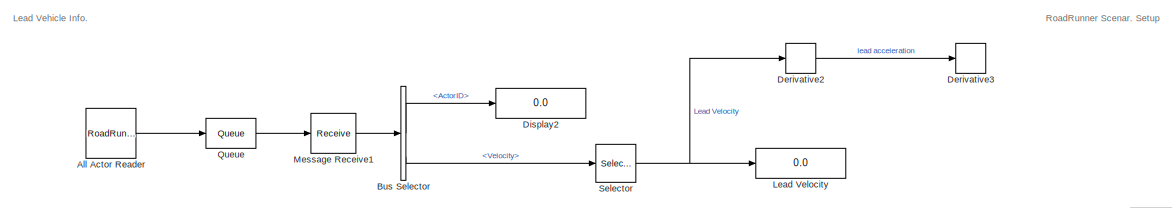
[diagram: root canvas - part 1/4, top center region]
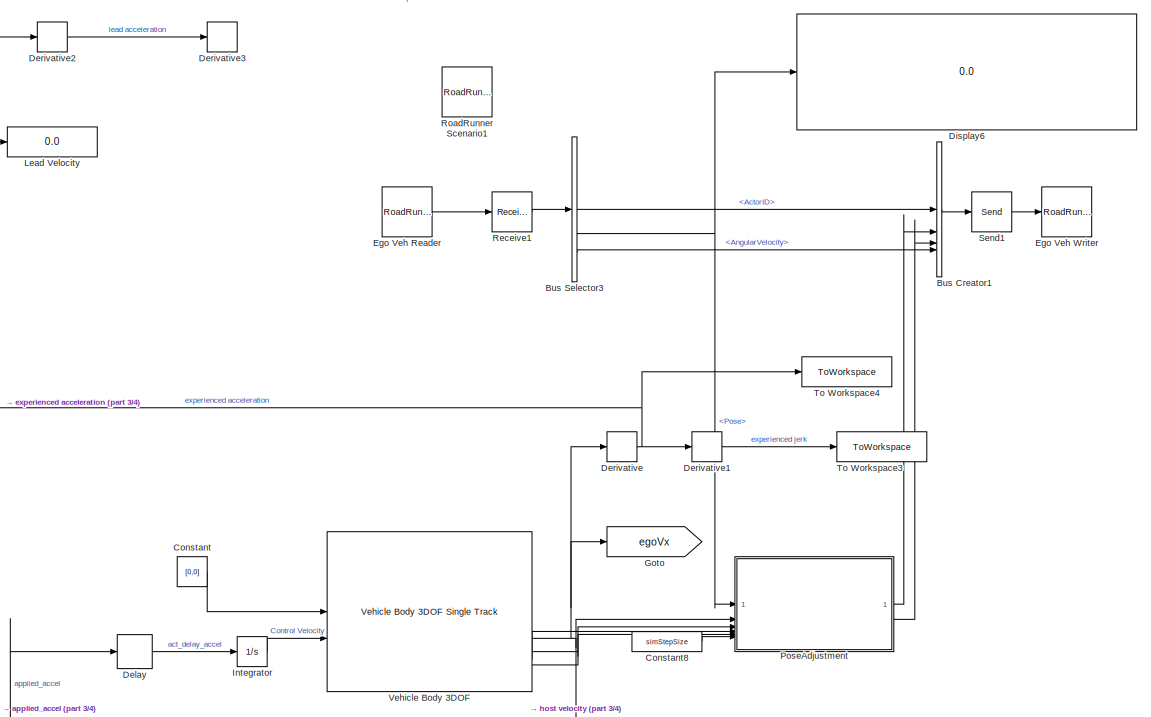
[diagram: root canvas - part 2/4, middle right region]
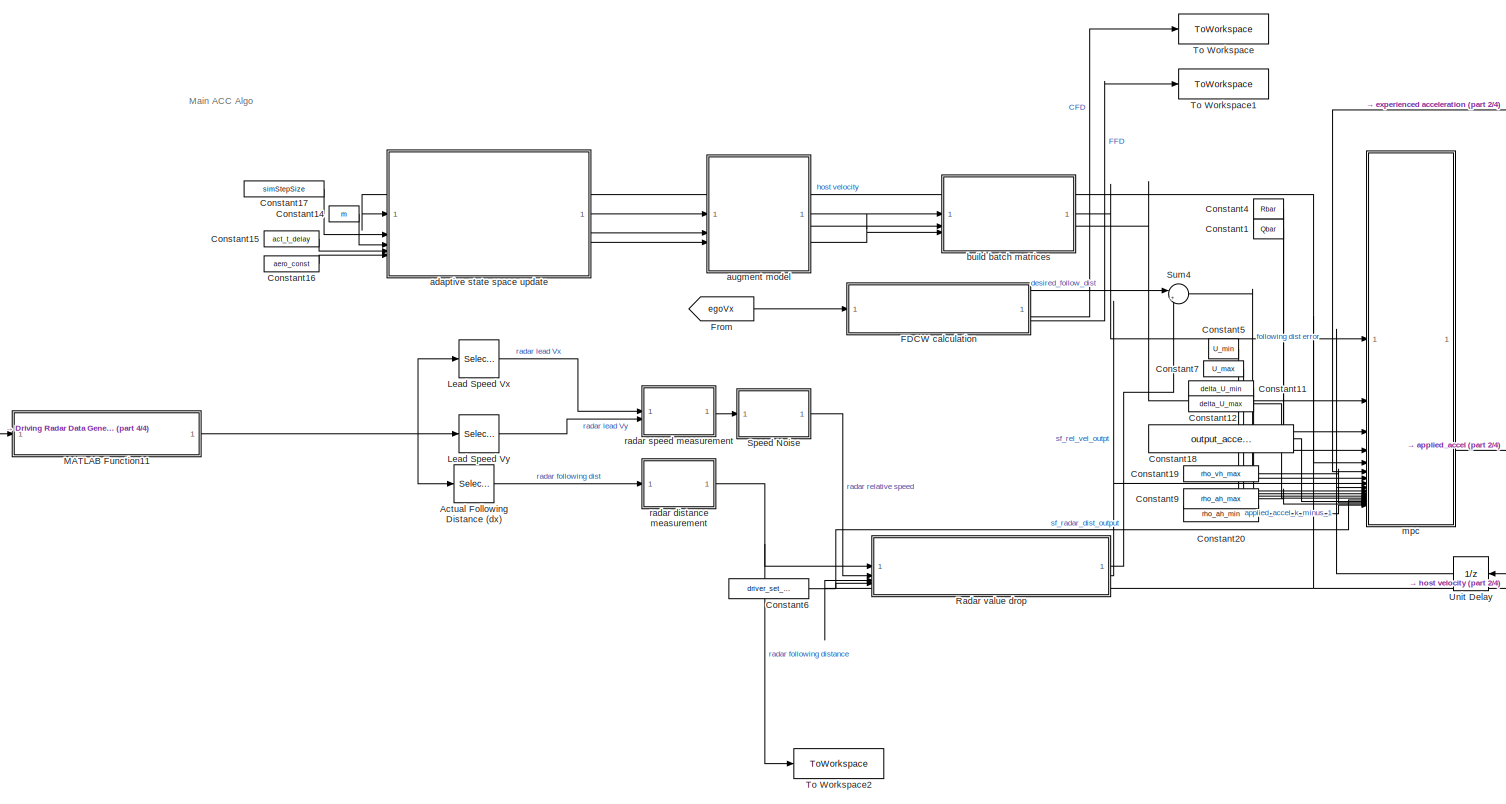
[diagram: root canvas - part 3/4, central region]
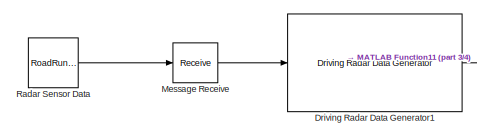
[diagram: root canvas - part 4/4, bottom left region]
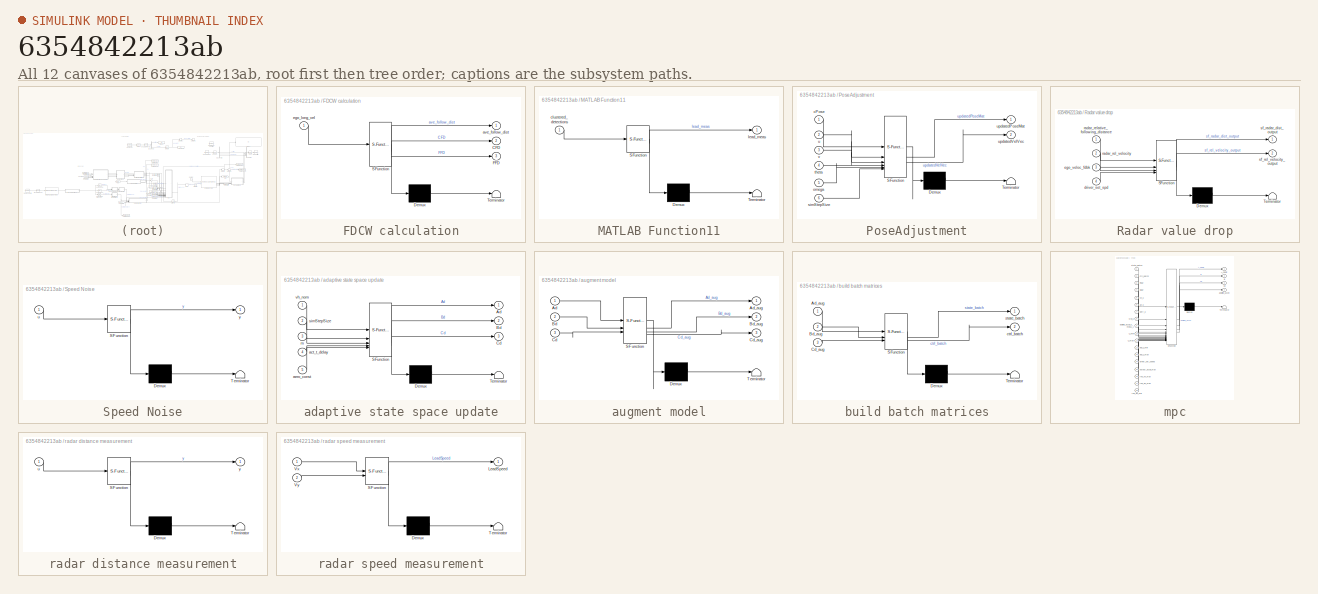
[diagram: thumbnail index - all 12 canvases of the model, root first then tree order]
MODEL slx_6354842213ab
KIND model
CONFIG AbsTol = auto
CONFIG EnableMultiTasking = off
CONFIG FixedStep = .05
CONFIG MaxStep = auto
CONFIG MinStep = auto
CONFIG RelTol = 1e-3
CONFIG SampleTimeConstraint = Unconstrained
CONFIG SolverName = FixedStepAuto
CONFIG StartTime = 0
CONFIG StopTime = 1000
BLOCK [Selector] Actual Following Distance (dx)
  IndexOptions = Index vector (dialog)
  Indices = [1]
  InputPortWidth = 6
  OutputSizes = 1
BLOCK [Reference] All Actor Reader  REF=roadrunnerscenario/RoadRunner Scenario
Reader
  SourceBlock = roadrunnerscenario/RoadRunner Scenario\nReader
BLOCK [BusCreator] Bus Creator1
  DisplayOption = bar
  InheritFromInputs = off
  Inputs = 4
  NonVirtualBus = on
  OutDataTypeStr = Bus: BusActorRuntime
BLOCK [BusSelector] Bus Selector
  OutputSignals = ActorID,Pose,Velocity
BLOCK [BusSelector] Bus Selector3
  OutputSignals = ActorID,Pose,Velocity,AngularVelocity
BLOCK [Constant] Constant
  Value = [0,0]
BLOCK [Constant] Constant1
  Value = Qbar
BLOCK [Constant] Constant11
  NameLocation = top
  Value = delta_U_min
BLOCK [Constant] Constant12
  Value = delta_U_max
BLOCK [Constant] Constant14
  Value = m
BLOCK [Constant] Constant15
  Value = act_t_delay
BLOCK [Constant] Constant16
  Value = aero_const
BLOCK [Constant] Constant17
  Value = simStepSize
BLOCK [Constant] Constant18
  Value = output_accel_max
BLOCK [Constant] Constant19
  Value = rho_vh_max
BLOCK [Constant] Constant20
  Value = rho_ah_min
BLOCK [Constant] Constant4
  Value = Rbar
BLOCK [Constant] Constant5
  Value = U_min
BLOCK [Constant] Constant6
  Value = driver_set_speed
BLOCK [Constant] Constant7
  Value = U_max
BLOCK [Constant] Constant8
  Value = simStepSize
BLOCK [Constant] Constant9
  Value = rho_ah_max
BLOCK [Delay] Delay
  DelayLength = 0.2/act_t_delay
  InputPortMap = u0
BLOCK [Derivative] Derivative
BLOCK [Derivative] Derivative1
BLOCK [Derivative] Derivative2
BLOCK [Derivative] Derivative3
BLOCK [Display] Display2
  Decimation = 1
BLOCK [Display] Display6
  Decimation = 1
BLOCK [Reference] Driving Radar Data Generator1  REF=drivingscenarioandsensors/Driving Radar Data Generator
  SourceBlock = drivingscenarioandsensors/Driving Radar Data Generator
  SourceType = drivingRadarDataGenerator
BLOCK [Reference] Ego Veh Reader  REF=roadrunnerscenario/RoadRunner Scenario
Reader
  SourceBlock = roadrunnerscenario/RoadRunner Scenario\nReader
BLOCK [Reference] Ego Veh Writer  REF=roadrunnerscenario/RoadRunner Scenario
Writer
  SourceBlock = roadrunnerscenario/RoadRunner Scenario\nWriter
BLOCK [SubSystem] FDCW calculation
  ErrorFcn = Stateflow.Translate.translate
  PermitHierarchicalResolution = ExplicitOnly
  SFBlockType = MATLAB Function
  TreatAsAtomicUnit = on
BLOCK [Demux] FDCW calculation/ Demux 
  Outputs = 1
BLOCK [S-Function] FDCW calculation/ SFunction 
  EnableBusSupport = on
  FunctionName = sf_sfun
  PortCounts = [1 4]
  SFcnIsStateOwnerBlock = off
  SFunctionDeploymentMode = off
  Tag = Stateflow S-Function 23
BLOCK [Terminator] FDCW calculation/ Terminator 
BLOCK [Outport] FDCW calculation/CFD
  Port = 2
BLOCK [Outport] FDCW calculation/FFD
  Port = 3
BLOCK [Outport] FDCW calculation/ave_follow_dist
BLOCK [Inport] FDCW calculation/ego_long_vel
BLOCK [From] From
  GotoTag = egoVx
BLOCK [Goto] Goto
  GotoTag = egoVx
BLOCK [Integrator] Integrator
BLOCK [Selector] Lead Speed Vx
  IndexOptions = Index vector (dialog)
  Indices = 4
  InputPortWidth = 6
  OutputSizes = 1
BLOCK [Selector] Lead Speed Vy
  IndexOptions = Index vector (dialog)
  Indices = 5
  InputPortWidth = 6
  NameLocation = top
  OutputSizes = 1
BLOCK [Display] Lead Velocity
  Decimation = 1
BLOCK [SubSystem] MATLAB Function11
  ErrorFcn = Stateflow.Translate.translate
  PermitHierarchicalResolution = ExplicitOnly
  SFBlockType = MATLAB Function
  TreatAsAtomicUnit = on
BLOCK [Demux] MATLAB Function11/ Demux 
  Outputs = 1
BLOCK [S-Function] MATLAB Function11/ SFunction 
  EnableBusSupport = on
  FunctionName = sf_sfun
  PortCounts = [1 2]
  SFcnIsStateOwnerBlock = off
  SFunctionDeploymentMode = off
  Tag = Stateflow S-Function 22
BLOCK [Terminator] MATLAB Function11/ Terminator 
BLOCK [Inport] MATLAB Function11/clustered_detections
BLOCK [Outport] MATLAB Function11/lead_meas
BLOCK [Receive] Message Receive
  InputPortMap = u0
  InputPortMessageModes = m
  OutputPortMap = o1
  UseInternalQueue = off
BLOCK [Receive] Message Receive1
  InputPortMap = u0
  InputPortMessageModes = m
  OutputPortMap = o1
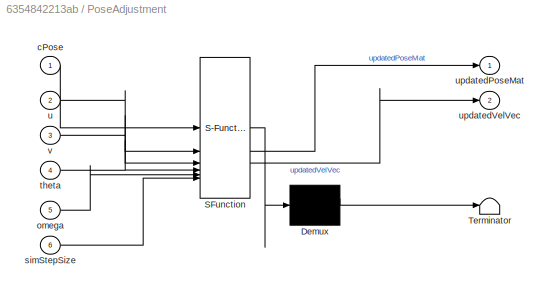
BLOCK [SubSystem] PoseAdjustment
  ErrorFcn = Stateflow.Translate.translate
  PermitHierarchicalResolution = ExplicitOnly
  SFBlockType = MATLAB Function
  TreatAsAtomicUnit = on
BLOCK [Demux] PoseAdjustment/ Demux 
  Outputs = 1
BLOCK [S-Function] PoseAdjustment/ SFunction 
  EnableBusSupport = on
  FunctionName = sf_sfun
  PortCounts = [6 3]
  SFcnIsStateOwnerBlock = off
  SFunctionDeploymentMode = off
  Tag = Stateflow S-Function 12
BLOCK [Terminator] PoseAdjustment/ Terminator 
BLOCK [Inport] PoseAdjustment/cPose
BLOCK [Inport] PoseAdjustment/omega
  Port = 5
BLOCK [Inport] PoseAdjustment/simStepSize
  Port = 6
BLOCK [Inport] PoseAdjustment/theta
  Port = 4
BLOCK [Inport] PoseAdjustment/u
  Port = 2
BLOCK [Outport] PoseAdjustment/updatedPoseMat
BLOCK [Outport] PoseAdjustment/updatedVelVec
  Port = 2
BLOCK [Inport] PoseAdjustment/v
  Port = 3
BLOCK [Queue] Queue
  Capacity = 16
  InputPortMap = u0
  InputPortMessageModes = m
  OutputPortMap = o5
  OutputPortMessageModes = m
  OverwriteOldest = on
  QueueType = LIFO
BLOCK [Reference] Radar Sensor Data  REF=roadrunnerscenario/RoadRunner Scenario
Reader
  SourceBlock = roadrunnerscenario/RoadRunner Scenario\nReader
BLOCK [SubSystem] Radar value drop
  ErrorFcn = Stateflow.Translate.translate
  PermitHierarchicalResolution = ExplicitOnly
  SFBlockType = Chart
  TreatAsAtomicUnit = on
BLOCK [Demux] Radar value drop/ Demux 
  Outputs = 1
BLOCK [S-Function] Radar value drop/ SFunction 
  EnableBusSupport = on
  FunctionName = sf_sfun
  PortCounts = [4 3]
  SFcnIsStateOwnerBlock = off
  SFunctionDeploymentMode = off
  Tag = Stateflow S-Function 3
BLOCK [Terminator] Radar value drop/ Terminator 
BLOCK [Inport] Radar value drop/driver_set_spd
  Port = 4
BLOCK [Inport] Radar value drop/ego_veloc_fdbk
  Port = 3
BLOCK [Inport] Radar value drop/radar_rel_velocity
  Port = 2
BLOCK [Inport] Radar value drop/radar_relative_following_distance
BLOCK [Outport] Radar value drop/sf_radar_dist_output
BLOCK [Outport] Radar value drop/sf_rel_velocity_output
  Port = 2
BLOCK [Receive] Receive1
  InputPortMap = u0
  InputPortMessageModes = m
  OutputPortMap = o1
  QueueLength = 1
  QueueOverwriting = on
  QueueType = LIFO
  UseInternalQueue = off
BLOCK [Reference] RoadRunner Scenario1  REF=roadrunnerscenario/RoadRunner Scenario
  SourceBlock = roadrunnerscenario/RoadRunner Scenario
BLOCK [Selector] Selector
  IndexOptions = Index vector (dialog)
  Indices = [2]
  InputPortWidth = 3
  OutputSizes = 1
BLOCK [Send] Send1
  InputPortMap = u1
  OutputPortMessageModes = m
BLOCK [SubSystem] Speed Noise
  ErrorFcn = Stateflow.Translate.translate
  PermitHierarchicalResolution = ExplicitOnly
  SFBlockType = MATLAB Function
  TreatAsAtomicUnit = on
BLOCK [Demux] Speed Noise/ Demux 
  Outputs = 1
BLOCK [S-Function] Speed Noise/ SFunction 
  EnableBusSupport = on
  FunctionName = sf_sfun
  PortCounts = [1 2]
  SFcnIsStateOwnerBlock = off
  SFunctionDeploymentMode = off
  Tag = Stateflow S-Function 15
BLOCK [Terminator] Speed Noise/ Terminator 
BLOCK [Inport] Speed Noise/u
BLOCK [Outport] Speed Noise/y
BLOCK [Sum] Sum4
  Inputs = |+-
BLOCK [ToWorkspace] To Workspace
  FixptAsFi = on
  MaxDataPoints = inf
  SampleTime = -1
  VariableName = MPC_CFD
BLOCK [ToWorkspace] To Workspace1
  FixptAsFi = on
  MaxDataPoints = inf
  SampleTime = -1
  VariableName = MPC_FFD
BLOCK [ToWorkspace] To Workspace2
  FixptAsFi = on
  MaxDataPoints = inf
  SampleTime = -1
  VariableName = MPC_actual_foll_dist
BLOCK [ToWorkspace] To Workspace3
  FixptAsFi = on
  MaxDataPoints = inf
  SampleTime = -1
  VariableName = MPC_host_jerk
BLOCK [ToWorkspace] To Workspace4
  FixptAsFi = on
  MaxDataPoints = inf
  SampleTime = -1
  VariableName = MPC_host_accel
BLOCK [UnitDelay] Unit Delay
  HasFrameUpgradeWarning = on
  SampleTime = -1
BLOCK [Reference] Vehicle Body 3DOF   REF=autolibshared/Vehicle Body 3DOF Single Track
  LibrarySourceBlock = vehdynlibeom/Vehicle Body 3DOF Single Track
  SourceBlock = autolibshared/Vehicle Body 3DOF Single Track
  SourceType = Vehicle Body 3DOF Lateral
BLOCK [SubSystem] adaptive state space update
  ErrorFcn = Stateflow.Translate.translate
  PermitHierarchicalResolution = ExplicitOnly
  SFBlockType = MATLAB Function
  TreatAsAtomicUnit = on
BLOCK [Demux] adaptive state space update/ Demux 
  Outputs = 1
BLOCK [S-Function] adaptive state space update/ SFunction 
  EnableBusSupport = on
  FunctionName = sf_sfun
  PortCounts = [5 4]
  SFcnIsStateOwnerBlock = off
  SFunctionDeploymentMode = off
  Tag = Stateflow S-Function 1
BLOCK [Terminator] adaptive state space update/ Terminator 
BLOCK [Outport] adaptive state space update/Ad
BLOCK [Outport] adaptive state space update/Bd
  Port = 2
BLOCK [Outport] adaptive state space update/Cd
  Port = 3
BLOCK [Inport] adaptive state space update/act_t_delay
  Port = 4
BLOCK [Inport] adaptive state space update/aero_const
  Port = 5
BLOCK [Inport] adaptive state space update/m
  Port = 3
BLOCK [Inport] adaptive state space update/simStepSize
  Port = 2
BLOCK [Inport] adaptive state space update/vh_nom
BLOCK [SubSystem] augment model
  ErrorFcn = Stateflow.Translate.translate
  PermitHierarchicalResolution = ExplicitOnly
  SFBlockType = MATLAB Function
  TreatAsAtomicUnit = on
BLOCK [Demux] augment model/ Demux 
  Outputs = 1
BLOCK [S-Function] augment model/ SFunction 
  EnableBusSupport = on
  FunctionName = sf_sfun
  PortCounts = [3 4]
  SFcnIsStateOwnerBlock = off
  SFunctionDeploymentMode = off
  Tag = Stateflow S-Function 6
BLOCK [Terminator] augment model/ Terminator 
BLOCK [Inport] augment model/Ad
BLOCK [Outport] augment model/Ad_aug
BLOCK [Inport] augment model/Bd
  Port = 2
BLOCK [Outport] augment model/Bd_aug
  Port = 2
BLOCK [Inport] augment model/Cd
  Port = 3
BLOCK [Outport] augment model/Cd_aug
  Port = 3
BLOCK [SubSystem] build batch matrices
  ErrorFcn = Stateflow.Translate.translate
  PermitHierarchicalResolution = ExplicitOnly
  SFBlockType = MATLAB Function
  SystemSampleTime = simStepSize
  TreatAsAtomicUnit = on
BLOCK [Demux] build batch matrices/ Demux 
  Outputs = 1
BLOCK [S-Function] build batch matrices/ SFunction 
  EnableBusSupport = on
  FunctionName = sf_sfun
  PortCounts = [3 3]
  SFcnIsStateOwnerBlock = off
  SFunctionDeploymentMode = off
  Tag = Stateflow S-Function 7
BLOCK [Terminator] build batch matrices/ Terminator 
BLOCK [Inport] build batch matrices/Ad_aug
BLOCK [Inport] build batch matrices/Bd_aug
  Port = 2
BLOCK [Inport] build batch matrices/Cd_aug
  Port = 3
BLOCK [Outport] build batch matrices/ctrl_batch
  Port = 2
BLOCK [Outport] build batch matrices/state_batch
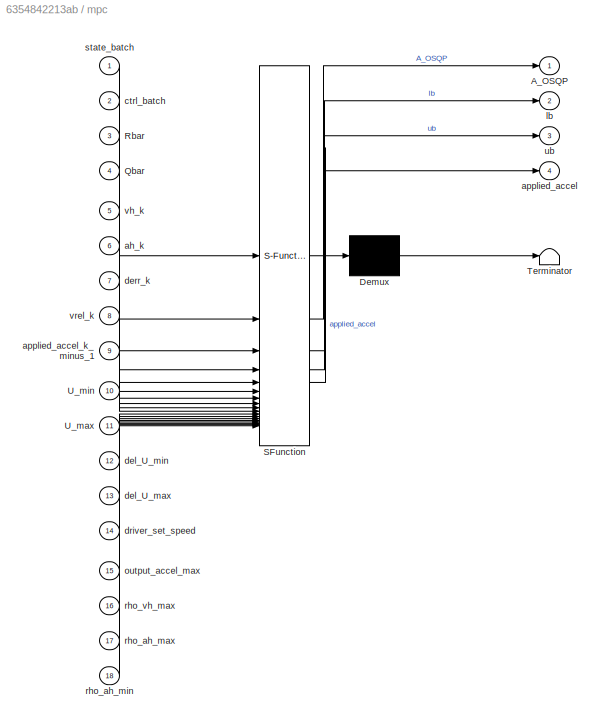
BLOCK [SubSystem] mpc
  ErrorFcn = Stateflow.Translate.translate
  PermitHierarchicalResolution = ExplicitOnly
  SFBlockType = MATLAB Function
  SystemSampleTime = simStepSize
  TreatAsAtomicUnit = on
BLOCK [Demux] mpc/ Demux 
  Outputs = 1
BLOCK [S-Function] mpc/ SFunction 
  EnableBusSupport = on
  FunctionName = sf_sfun
  PortCounts = [18 5]
  SFcnIsStateOwnerBlock = off
  SFunctionDeploymentMode = off
  Tag = Stateflow S-Function 2
BLOCK [Terminator] mpc/ Terminator 
BLOCK [Outport] mpc/A_OSQP
BLOCK [Inport] mpc/Qbar
  Port = 4
BLOCK [Inport] mpc/Rbar
  Port = 3
BLOCK [Inport] mpc/U_max
  Port = 11
BLOCK [Inport] mpc/U_min
  Port = 10
BLOCK [Inport] mpc/ah_k
  Port = 6
BLOCK [Outport] mpc/applied_accel
  Port = 4
BLOCK [Inport] mpc/applied_accel_k_minus_1
  Port = 9
BLOCK [Inport] mpc/ctrl_batch
  Port = 2
BLOCK [Inport] mpc/del_U_max
  Port = 13
BLOCK [Inport] mpc/del_U_min
  Port = 12
BLOCK [Inport] mpc/derr_k
  Port = 7
BLOCK [Inport] mpc/driver_set_speed
  Port = 14
BLOCK [Outport] mpc/lb
  Port = 2
BLOCK [Inport] mpc/output_accel_max
  Port = 15
BLOCK [Inport] mpc/rho_ah_max
  Port = 17
BLOCK [Inport] mpc/rho_ah_min
  Port = 18
BLOCK [Inport] mpc/rho_vh_max
  Port = 16
BLOCK [Inport] mpc/state_batch
BLOCK [Outport] mpc/ub
  Port = 3
BLOCK [Inport] mpc/vh_k
  Port = 5
BLOCK [Inport] mpc/vrel_k
  Port = 8
BLOCK [SubSystem] radar distance measurement
  ErrorFcn = Stateflow.Translate.translate
  PermitHierarchicalResolution = ExplicitOnly
  SFBlockType = MATLAB Function
  TreatAsAtomicUnit = on
BLOCK [Demux] radar distance measurement/ Demux 
  Outputs = 1
BLOCK [S-Function] radar distance measurement/ SFunction 
  EnableBusSupport = on
  FunctionName = sf_sfun
  PortCounts = [1 2]
  SFcnIsStateOwnerBlock = off
  SFunctionDeploymentMode = off
  Tag = Stateflow S-Function 13
BLOCK [Terminator] radar distance measurement/ Terminator 
BLOCK [Inport] radar distance measurement/u
BLOCK [Outport] radar distance measurement/y
BLOCK [SubSystem] radar speed measurement
  ErrorFcn = Stateflow.Translate.translate
  PermitHierarchicalResolution = ExplicitOnly
  SFBlockType = MATLAB Function
  TreatAsAtomicUnit = on
BLOCK [Demux] radar speed measurement/ Demux 
  Outputs = 1
BLOCK [S-Function] radar speed measurement/ SFunction 
  EnableBusSupport = on
  FunctionName = sf_sfun
  PortCounts = [2 2]
  SFcnIsStateOwnerBlock = off
  SFunctionDeploymentMode = off
  Tag = Stateflow S-Function 14
BLOCK [Terminator] radar speed measurement/ Terminator 
BLOCK [Outport] radar speed measurement/LeadSpeed
BLOCK [Inport] radar speed measurement/Vx
BLOCK [Inport] radar speed measurement/Vy
  Port = 2
ANNOTATION (root): Lead Vehicle Info.
ANNOTATION (root): Main ACC Algo
ANNOTATION (root): RoadRunner Scenar. Setup
LINE Actual Following Distance (dx):1 -> radar distance measurement:1
LINE All Actor Reader:1 -> Queue:1
LINE Bus Creator1:1 -> Send1:1
LINE Bus Selector3:1 -> Bus Creator1:1
NET Bus Selector3:2 -> Display6:1, PoseAdjustment:1
LINE Bus Selector3:4 -> Bus Creator1:4
LINE Bus Selector:1 -> Display2:1
LINE Bus Selector:3 -> Selector:1
LINE Constant11:1 -> mpc:12
LINE Constant12:1 -> mpc:13
LINE Constant14:1 -> adaptive state space update:3
LINE Constant15:1 -> adaptive state space update:4
LINE Constant16:1 -> adaptive state space update:5
LINE Constant17:1 -> adaptive state space update:2
LINE Constant18:1 -> mpc:15
LINE Constant19:1 -> mpc:16
LINE Constant1:1 -> mpc:4
LINE Constant20:1 -> mpc:18
LINE Constant4:1 -> mpc:3
LINE Constant5:1 -> mpc:10
NET Constant6:1 -> Radar value drop:4, mpc:14
LINE Constant7:1 -> mpc:11
LINE Constant8:1 -> PoseAdjustment:6
LINE Constant9:1 -> mpc:17
LINE Constant:1 -> Vehicle Body 3DOF :1
LINE Delay:1 -> Integrator:1
LINE Derivative1:1 -> To Workspace3:1
LINE Derivative2:1 -> Derivative3:1
NET Derivative:1 -> Derivative1:1, To Workspace4:1, mpc:6
LINE Driving Radar Data Generator1:1 -> MATLAB Function11:1
LINE Ego Veh Reader:1 -> Receive1:1
LINE FDCW calculation:1 -> Sum4:1
LINE FDCW calculation:2 -> To Workspace:1
LINE FDCW calculation:3 -> To Workspace1:1
LINE From:1 -> FDCW calculation:1
LINE Integrator:1 -> Vehicle Body 3DOF :2
LINE Lead Speed Vx:1 -> radar speed measurement:1
LINE Lead Speed Vy:1 -> radar speed measurement:2
NET MATLAB Function11:1 -> Actual Following Distance (dx):1, Lead Speed Vx:1, Lead Speed Vy:1
LINE Message Receive1:1 -> Bus Selector:1
LINE Message Receive:1 -> Driving Radar Data Generator1:1
LINE PoseAdjustment:1 -> Bus Creator1:2
LINE PoseAdjustment:2 -> Bus Creator1:3
LINE Queue:1 -> Message Receive1:1
LINE Radar Sensor Data:1 -> Message Receive:1
LINE Radar value drop:1 -> Sum4:2
LINE Radar value drop:2 -> mpc:8
LINE Receive1:1 -> Bus Selector3:1
NET Selector:1 -> Derivative2:1, Lead Velocity:1
LINE Send1:1 -> Ego Veh Writer:1
LINE Speed Noise:1 -> Radar value drop:2
LINE Sum4:1 -> mpc:7
LINE Unit Delay:1 -> mpc:9
NET Vehicle Body 3DOF :2 -> Derivative:1, Goto:1, PoseAdjustment:2, Radar value drop:3, adaptive state space update:1, mpc:5
LINE Vehicle Body 3DOF :3 -> PoseAdjustment:3
LINE Vehicle Body 3DOF :4 -> PoseAdjustment:4
LINE Vehicle Body 3DOF :5 -> PoseAdjustment:5
LINE adaptive state space update:1 -> augment model:1
LINE adaptive state space update:2 -> augment model:2
LINE adaptive state space update:3 -> augment model:3
LINE augment model:1 -> build batch matrices:1
LINE augment model:2 -> build batch matrices:2
LINE augment model:3 -> build batch matrices:3
LINE build batch matrices:1 -> mpc:1
LINE build batch matrices:2 -> mpc:2
NET mpc:4 -> Delay:1, Unit Delay:1
NET radar distance measurement:1 -> Radar value drop:1, To Workspace2:1
LINE radar speed measurement:1 -> Speed Noise:1
note: NET lines group one-source signal fan-out (src -> all destinations, sorted); 1:1 wires keep LINE
CHART build batch matrices states=1 transitions=1
  STATE_LABEL 'eML_blk_kernel()'
  STATE_LABEL 'SCRIPT:\nfunction [state_batch,ctrl_batch] = batch_matrix_build(Ad_aug,Bd_aug,Cd_aug)\n[ny1,ny2] = size(Cd_aug);\n[~,nu] = size(Bd_aug);\n\nN=20;\n\n% Building batch matrices for MPC prediction of output states\n% batch matrix for state vector\nstate_batch = zeros(N*ny1, ny2);\nfor i = 1:N\n    state_batch((i-1)*ny1+1 : i*ny1, :) = Cd_aug*(Ad_aug^i);\nend\n\n% Batch matrix for control vector\nctrl_batch = zeros(...<+519ch>'
CHART PoseAdjustment states=1 transitions=1
  STATE_LABEL 'eML_blk_kernel()'
  STATE_LABEL 'SCRIPT:\nfunction [updatedPoseMat, updatedVelVec] = RRPoseAdjustment(cPose, u, v, theta, omega, simStepSize)\n    thetad = theta + omega*simStepSize;\n    xd = (u*cos(theta) - v*sin(theta))*simStepSize;\n    yd = (u*sin(theta) + v*cos(theta))*simStepSize;\n    pose_mat = [cos(-thetad) -sin(-thetad) 0 (yd+cPose(1,4)); sin(-thetad) cos(-thetad) 0 (xd+cPose(2,4)); 0 0 1 0; 0 0 0 1];\n    updatedPoseMat = p...<+108ch>'
CHART radar distance measurement states=1 transitions=1
  STATE_LABEL 'eML_blk_kernel()'
  STATE_LABEL 'SCRIPT:\nfunction y = removeSpikes(u)\n\n    persistent buffer;\n    persistent bufferIndex;\n    threshold = 2;\n    % windowSize = 15;\n    windowSize = 5;\n    \n    if isempty(buffer)\n        buffer = zeros(1, windowSize);\n        bufferIndex = 1;\n    end\n    \n    % Update buffer with new value\n    buffer(bufferIndex) = u;\n    bufferIndex = mod(bufferIndex, windowSize) + 1;\n    \n    % Calculate the med...<+257ch>'
CHART radar speed measurement states=1 transitions=1
  STATE_LABEL 'eML_blk_kernel()'
  STATE_LABEL 'SCRIPT:\nfunction LeadSpeed = fcn(Vx, Vy)\n\nif Vx == 0 && Vy == 0 \n    Vx = 0.01;\n    Vy = 0.01;\nelseif Vy == 0\n    Vy = 0.01;\nelseif Vx == 0\n    Vx = 0.01;\nend\n\nif Vx <= 0\n    LeadSpeed = -sqrt(Vx^2 + Vy^2);\nelse\n    LeadSpeed = sqrt(Vx^2 + Vy^2);\nend\n\n'
CHART Speed Noise states=1 transitions=1
  STATE_LABEL 'eML_blk_kernel()'
  STATE_LABEL 'SCRIPT:\nfunction y = removeSpikes(u)\n    % removeSpikes - Removes spikes from a scalar signal based on a threshold\n    %\n    % Inputs:\n    %    u - The input signal (scalar)\n    %    threshold - The threshold value to detect spikes\n    %    windowSize - The size of the window for calculating the median\n    %\n    % Outputs:\n    %    y - The filtered signal with spikes removed\n\n    % Declare persist...<+655ch>'
CHART MATLAB Function11 states=1 transitions=1
  STATE_LABEL 'eML_blk_kernel()'
  STATE_LABEL 'SCRIPT:\nfunction lead_meas = fcn(clustered_detections)\n\nlead_det = clustered_detections.Detections(1);\nlead_meas = lead_det.Measurement;\n\n% relative_dist = sqrt(lead_det.Measurement(1)^2 + lead_det.Measurement(2)^2); % rel_dist = sqrt(x^2+y^2)\n% relative_speed = sqrt(lead_det.Measurement(4)^2 + lead_det.Measurement(5)^2);\nend'
CHART FDCW calculation states=1 transitions=1
  STATE_LABEL 'eML_blk_kernel()'
  STATE_LABEL "SCRIPT:\n% Function to determine the closest (CFD) and furthest follow distance (FFD) for the\n% ego vehicle relative to the lead vehicle given the ego vehicle's current\n% velocity\n\n% This function outputs the middle distance value between the CFD and FFD\n% and those values respectively as well\n\nfunction [ave_follow_dist, CFD, FFD] = fcn(ego_long_vel)\n    persistent dist_history window_size smoothin...<+1178ch>"
CHART adaptive state space update states=1 transitions=1
  STATE_LABEL 'eML_blk_kernel()'
  STATE_LABEL 'SCRIPT:\nfunction [Ad,Bd,Cd] = adaptive_state_space_model(vh_nom, simStepSize, m, act_t_delay, aero_const)\n% multiplying A matrix term with current vehicle velocity vh_nom to update\n% state space model for adaptive MPC\nAc = [-aero_const*vh_nom/m,1,0,0; 0, -1/act_t_delay, 0,0; 0,0,0,-1; aero_const*vh_nom/m,-1,0,0];\nBc = [0;1/act_t_delay;0;0];\n\n% Using Euler discretization to obtain the discrete time...<+107ch>'
CHART mpc states=1 transitions=1
  STATE_LABEL 'eML_blk_kernel()'
  STATE_LABEL 'SCRIPT:\nfunction [A_OSQP, lb, ub, applied_accel] = mpc(state_batch, ctrl_batch, Rbar, Qbar, vh_k, ah_k, derr_k, vrel_k, applied_accel_k_minus_1, U_min, U_max, del_U_min, del_U_max, driver_set_speed, output_accel_max, rho_vh_max, rho_ah_max, rho_ah_min)\n% Defining MPC and system variables\nN = 20;\nnum_constrained_outpts = 2;\nnum_ctrl = 1;\n\nstate_vec_curr = [vh_k, ah_k, derr_k, vrel_k, applied_accel_...<+3608ch>'
CHART Radar value drop states=3 transitions=3
  STATE_LABEL 'Radar_State_Lead_Veh_Present_and_Detected\n\nsf_radar_dist_output = radar_relative_following_distance;\n% sf_radar_dist_output = smooth_switch(sf_radar_dist_output, radar_relative_following_distance, 0.05, 2);\nsf_rel_velocity_output = radar_rel_velocity;\n%sf_rel_velocity_output = smooth_switch(sf_rel_velocity_output, radar_rel_velocity, 0.05, 1);\n'
  STATE_LABEL 'filtered_val = smooth_switch(prev_val, curr_val, dt, tau)'
  STATE_LABEL 'SCRIPT:\nfunction filtered_val = smooth_switch(prev_val, curr_val, dt, tau)\n% Smooth transition from prev_val toward curr_val\n% dt  = sample time [s]; equal to system sample time of 0.05s currently\n% tau = time constant [s] (0.3–1.0 typical)\n\nif isempty(prev_val)\n    prev_val = 0;\nend\n\nalpha = exp(-dt/tau);\nfiltered_val = alpha*prev_val + (1-alpha)*curr_val;\nend'
  STATE_LABEL 'Output_Spoof_To_Keep_Moving\n\n% sf_radar_dist_output = 150;\nsf_radar_dist_output = smooth_switch(sf_radar_dist_output, 150, 0.05, 2);\nset_spd_err = driver_set_spd - ego_veloc_fdbk;\n% sf_rel_velocity_output = set_spd_err;\nsf_rel_velocity_output = smooth_switch(sf_rel_velocity_output, set_spd_err, 0.05, 5);'
CHART augment model states=1 transitions=1
  STATE_LABEL 'eML_blk_kernel()'
  STATE_LABEL "SCRIPT:\nfunction [Ad_aug,Bd_aug,Cd_aug] = augment_ss_model(Ad,Bd,Cd)\n[num_states,~] = size(Ad); % number of states in unaugmented system model\n[~,num_ctrl] = size(Bd); % number of control inputs to system\n[num_outpts,~] = size(Cd); % number of outputs from system\n\n% Augmenting the State space model to have control vector delta_u and new state vec [x(k)', u(k-1)]' and output vec y(k) = x(k) \nAd_aug...<+132ch>"
CHART  states=0 transitions=0
CHART  states=0 transitions=0
CHART  states=0 transitions=0
CHART  states=0 transitions=0
CHART  states=0 transitions=0
CHART  states=0 transitions=0
CHART  states=0 transitions=0
CHART  states=0 transitions=0
CHART  states=0 transitions=0
CHART  states=0 transitions=0
CHART  states=0 transitions=0
